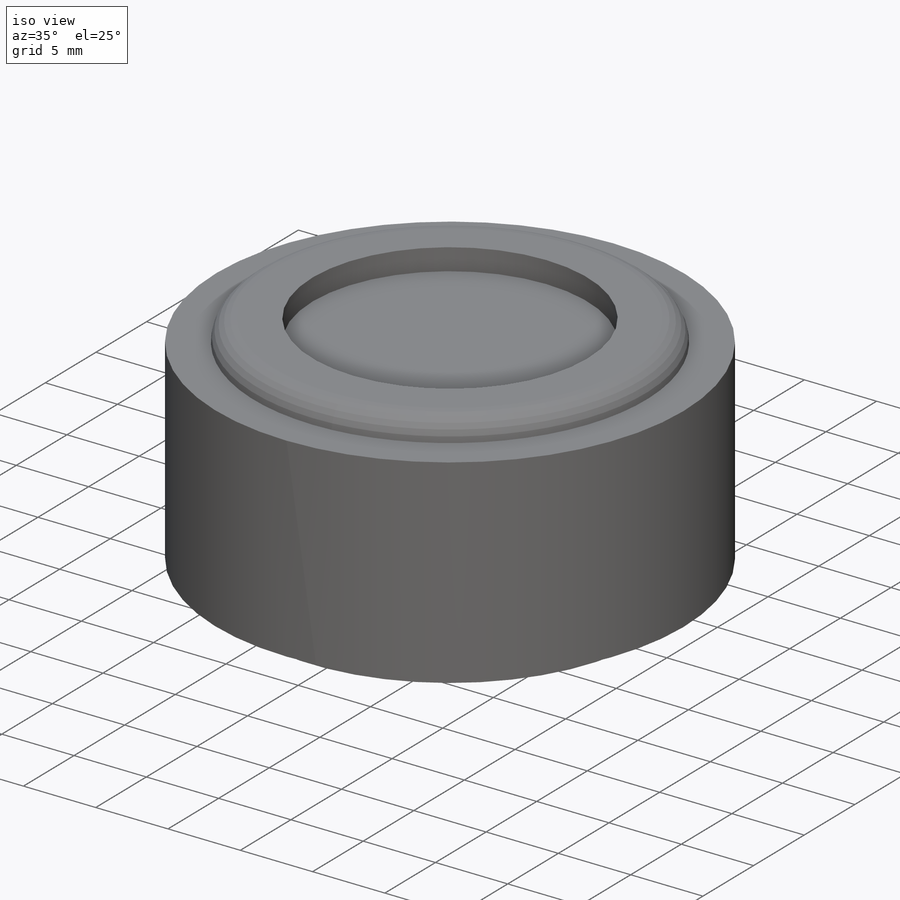
[diagram: iso view]
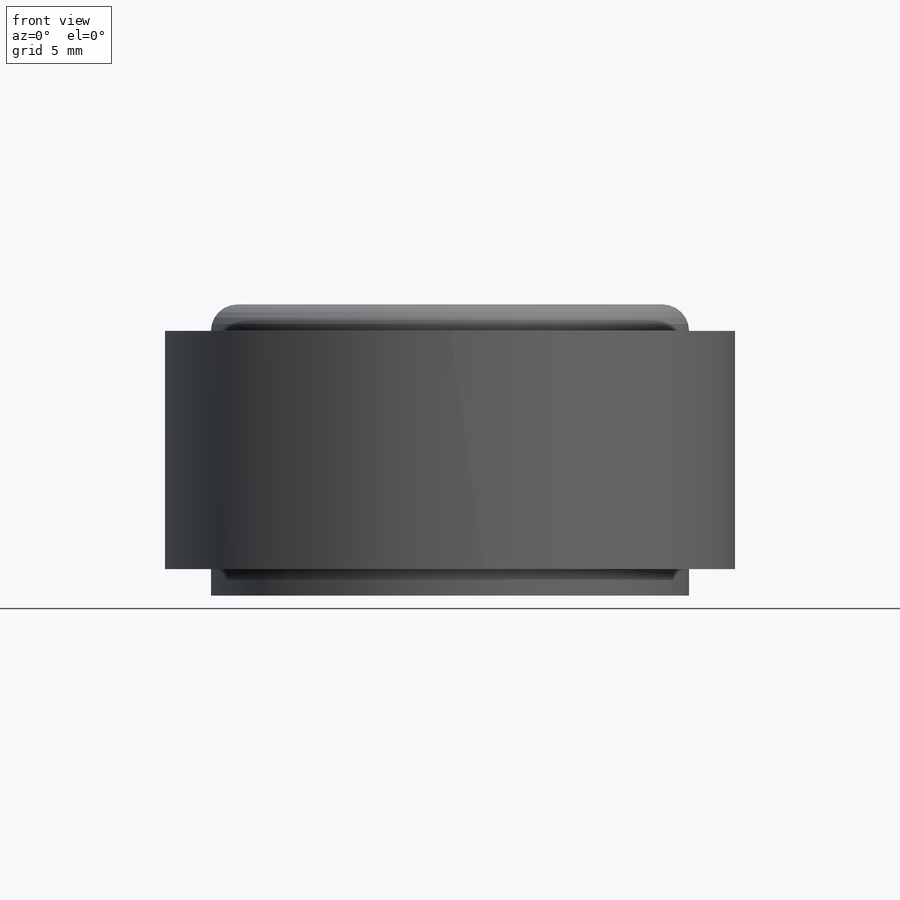
[diagram: front view]
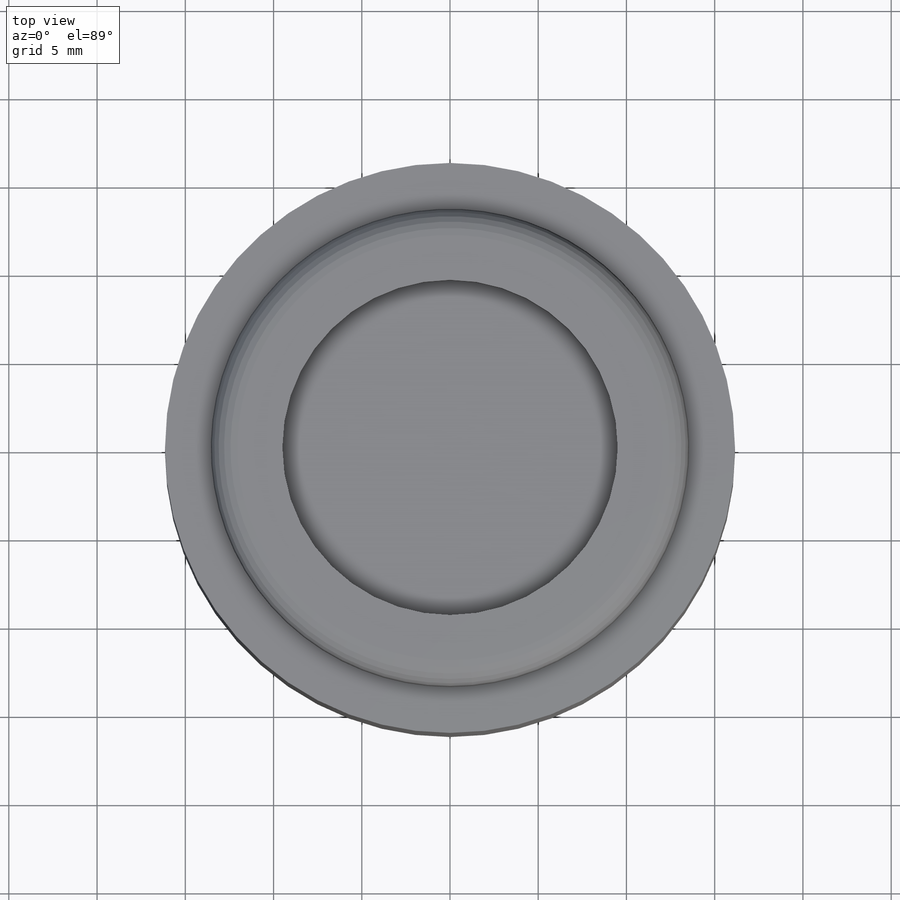
[diagram: top view]
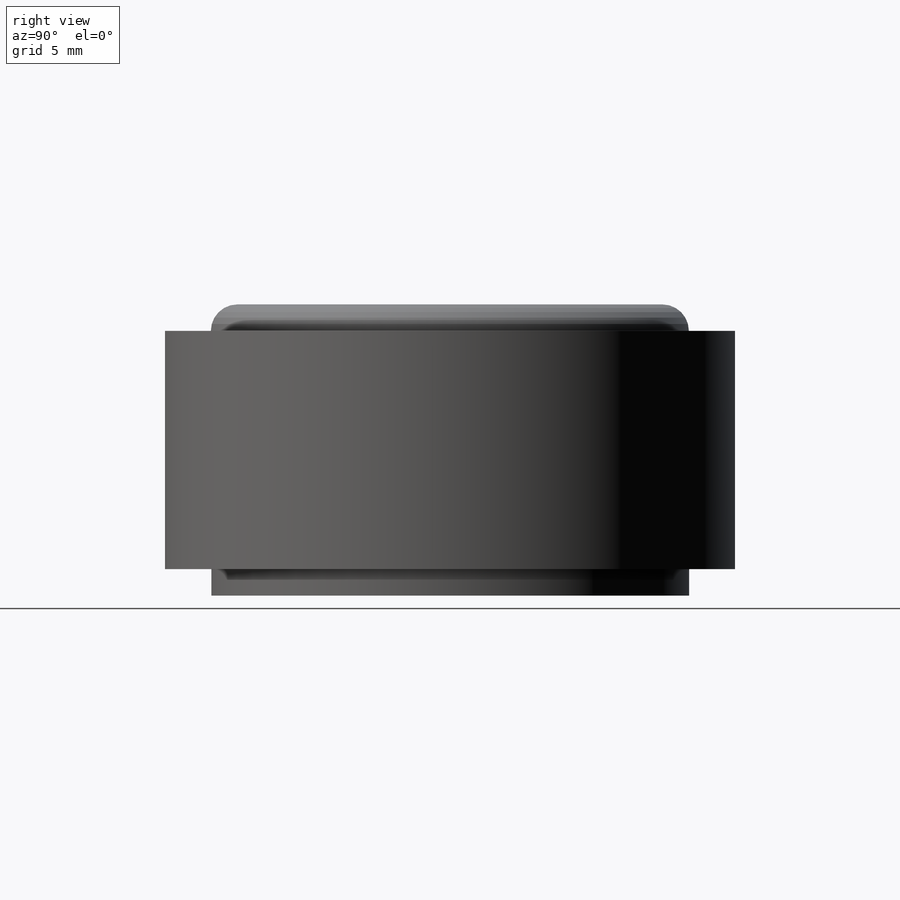
[diagram: right view]
SOLIDWORKS PART (.sldprt)
format: sldprt  version: not decoded by parser v0  size: 238,592 bytes
history: native  units: mm
features: sketch x6, cut_extrude x5, material x1, extrude x1, plane x1, fillet x1 (+13 scaffold rows collapsed)
feature tree (28):
  scaffold x13  (default folders/planes/origin — collapsed)
  material  "Material <not specified>"
  sketch  "Sketch1"  dims[D1=32.3mm]
  extrude  "Boss-Extrude1"  Depth=16.5mm
  sketch  "Sketch2"  dims[D1=27.1mm]
  cut_extrude  "Cut-Extrude1"  Depth=1.5mm
  sketch  "Sketch3"  dims[D1=19.0mm]
  cut_extrude  "Cut-Extrude2"  Depth=1.5mm
  plane  "Plane1"  Offset=0mm
  sketch  "Sketch4"  dims[D1=27.1mm]
  cut_extrude  "Cut-Extrude3"  Depth=1.5mm
  sketch  "Sketch5"  dims[D1=24.0mm]
  cut_extrude  "Cut-Extrude4"  Depth=1.5mm
  sketch  "Sketch6"  dims[D1=17.0mm D2=2.8mm D5=2.8mm D4=45.0deg D3=8.0]
  cut_extrude  "Cut-Extrude7"  Depth=2.5mm
  fillet  "Fillet2"  Radius=1.5mm
decode coverage: 13 of 13 modeling features carry decoded parameters
note: suppression state not decoded; provenance and decode notes live in map.json
